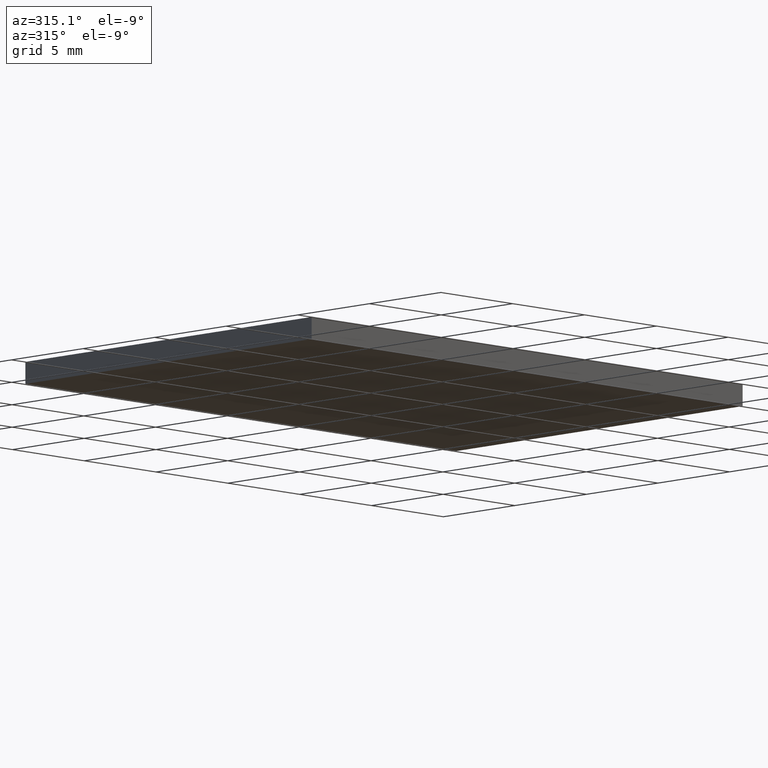
[diagram: clean part render]
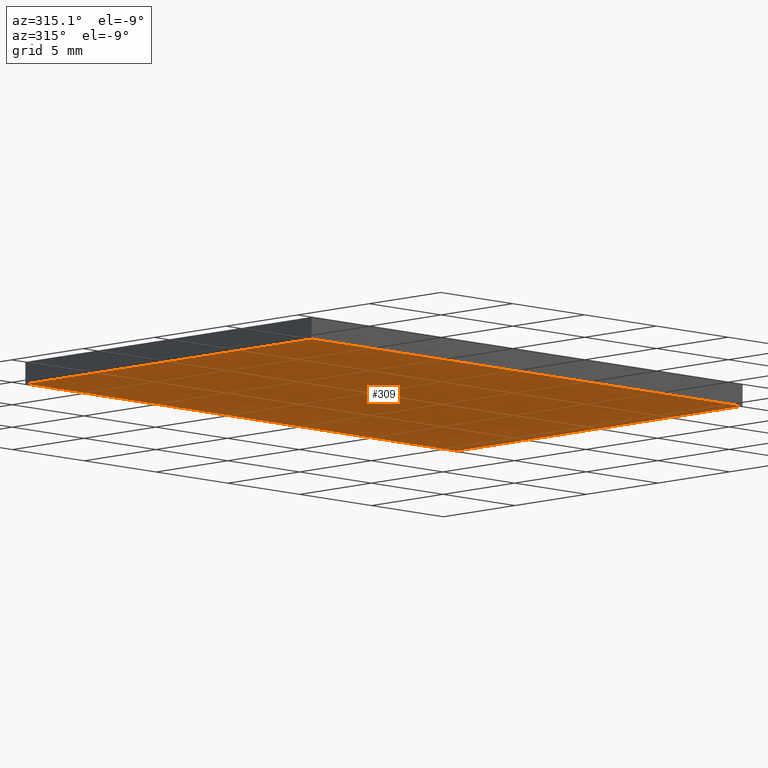
[diagram: same view with one face highlighted and labeled with its STEP entity id]
A machine part, auxiliary view. The second image highlights one B-rep face of the part: STEP entity #309.
In plain terms, the highlighted planar face has unit normal (-0, 0, 1).
Its self-contained STEP definition (entity closure, byte-faithful):
#1 = CARTESIAN_POINT ( 'NONE',  ( 18.24871321396390700, -7.690632713374410100, 0.0000000000000000000 ) ) ;
#15 = VERTEX_POINT ( 'NONE', #226 ) ;
#16 = VECTOR ( 'NONE', #172, 1000.000000000000000 ) ;
#17 = DIRECTION ( 'NONE',  ( 1.734723475976807100E-016, -1.000000000000000000, 0.0000000000000000000 ) ) ;
#20 = LINE ( 'NONE', #176, #279 ) ;
#24 = ORIENTED_EDGE ( 'NONE', *, *, #157, .F. ) ;
#27 = PLANE ( 'NONE',  #155 ) ;
#38 = ORIENTED_EDGE ( 'NONE', *, *, #103, .F. ) ;
#44 = DIRECTION ( 'NONE',  ( -1.000000000000000000, -0.0000000000000000000, -0.0000000000000000000 ) ) ;
#60 = EDGE_CURVE ( 'NONE', #79, #133, #134, .T. ) ;
#76 = CARTESIAN_POINT ( 'NONE',  ( -11.75128678603609700, 12.30936728662558900, 0.0000000000000000000 ) ) ;
#79 = VERTEX_POINT ( 'NONE', #272 ) ;
#93 = EDGE_CURVE ( 'NONE', #133, #15, #168, .T. ) ;
#99 = DIRECTION ( 'NONE',  ( -0.0000000000000000000, 0.0000000000000000000, 1.000000000000000000 ) ) ;
#103 = EDGE_CURVE ( 'NONE', #15, #225, #217, .T. ) ;
#133 = VERTEX_POINT ( 'NONE', #1 ) ;
#134 = LINE ( 'NONE', #314, #16 ) ;
#136 = FACE_OUTER_BOUND ( 'NONE', #158, .T. ) ;
#139 = ORIENTED_EDGE ( 'NONE', *, *, #60, .F. ) ;
#155 = AXIS2_PLACEMENT_3D ( 'NONE', #300, #99, #230 ) ;
#157 = EDGE_CURVE ( 'NONE', #225, #79, #20, .T. ) ;
#158 = EDGE_LOOP ( 'NONE', ( #24, #38, #274, #139 ) ) ;
#168 = LINE ( 'NONE', #202, #177 ) ;
#172 = DIRECTION ( 'NONE',  ( 1.000000000000000000, 0.0000000000000000000, 0.0000000000000000000 ) ) ;
#176 = CARTESIAN_POINT ( 'NONE',  ( -11.75128678603609700, 12.30936728662558900, 0.0000000000000000000 ) ) ;
#177 = VECTOR ( 'NONE', #247, 1000.000000000000000 ) ;
#202 = CARTESIAN_POINT ( 'NONE',  ( 18.24871321396390300, 12.30936728662558900, 0.0000000000000000000 ) ) ;
#214 = VECTOR ( 'NONE', #44, 1000.000000000000000 ) ;
#217 = LINE ( 'NONE', #76, #214 ) ;
#225 = VERTEX_POINT ( 'NONE', #269 ) ;
#226 = CARTESIAN_POINT ( 'NONE',  ( 18.24871321396390300, 12.30936728662558900, 0.0000000000000000000 ) ) ;
#230 = DIRECTION ( 'NONE',  ( 1.000000000000000000, 0.0000000000000000000, 0.0000000000000000000 ) ) ;
#247 = DIRECTION ( 'NONE',  ( -1.734723475976807100E-016, 1.000000000000000000, -0.0000000000000000000 ) ) ;
#269 = CARTESIAN_POINT ( 'NONE',  ( -11.75128678603609700, 12.30936728662558900, 0.0000000000000000000 ) ) ;
#272 = CARTESIAN_POINT ( 'NONE',  ( -11.75128678603609300, -7.690632713374410100, 0.0000000000000000000 ) ) ;
#274 = ORIENTED_EDGE ( 'NONE', *, *, #93, .F. ) ;
#279 = VECTOR ( 'NONE', #17, 1000.000000000000000 ) ;
#300 = CARTESIAN_POINT ( 'NONE',  ( 0.0000000000000000000, 0.0000000000000000000, 0.0000000000000000000 ) ) ;
#309 = ADVANCED_FACE ( 'NONE', ( #136 ), #27, .F. ) ;
#314 = CARTESIAN_POINT ( 'NONE',  ( -11.75128678603609300, -7.690632713374410100, 0.0000000000000000000 ) ) ;